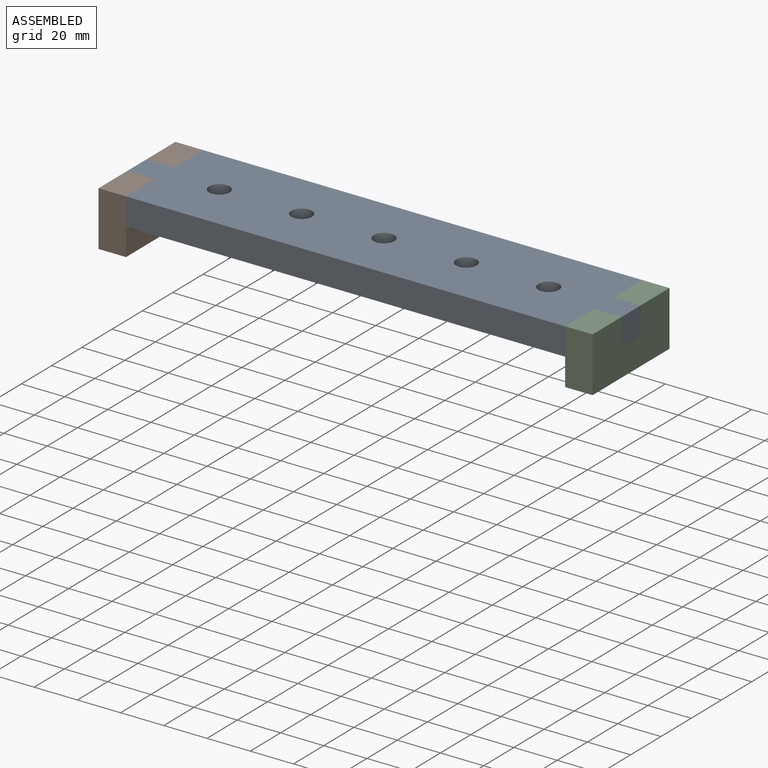
[diagram: assembled view]
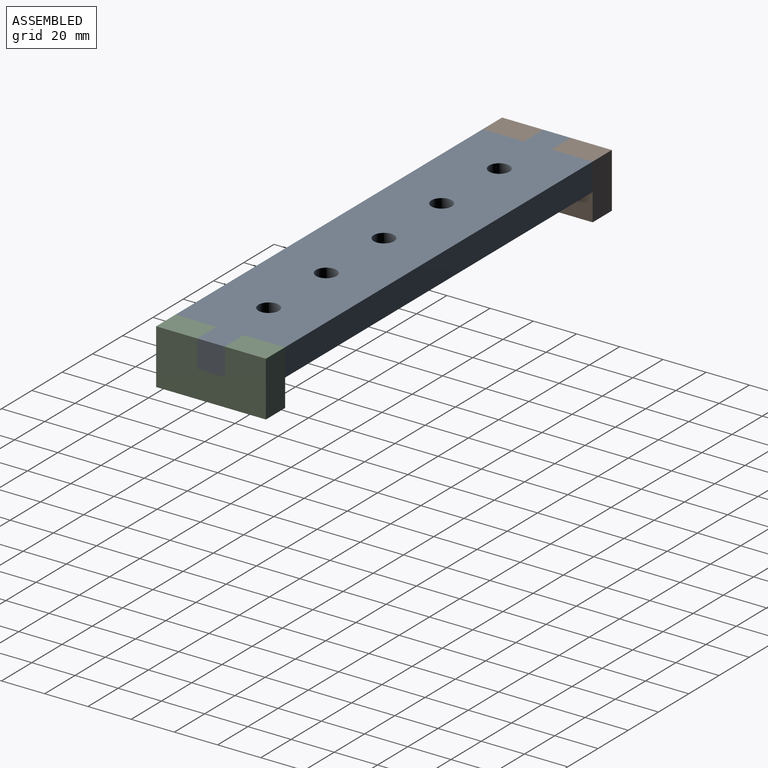
[diagram: assembled view, second angle]
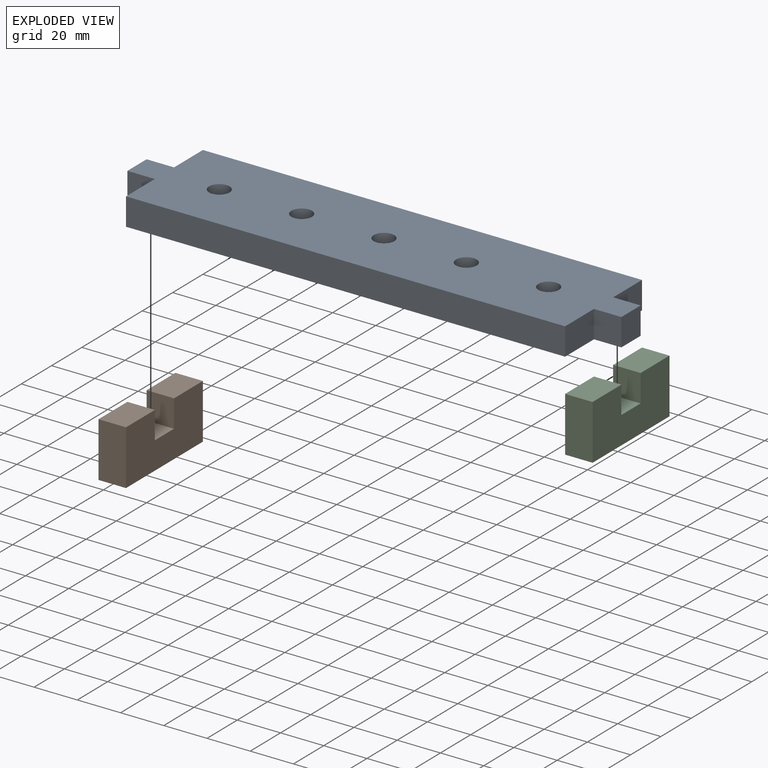
[diagram: exploded view]
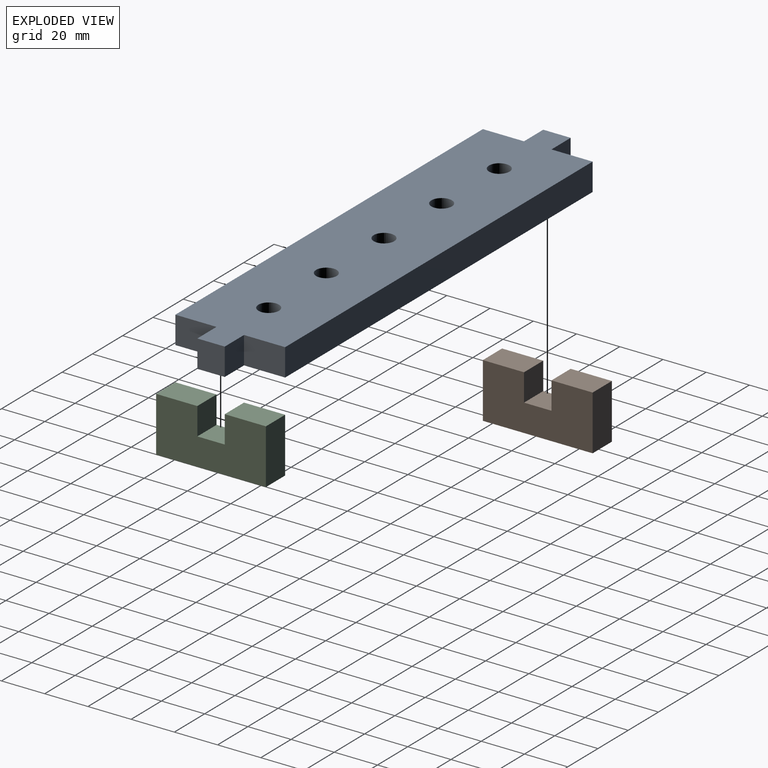
[diagram: exploded view, second angle]
ASSEMBLY  parts=3 mates=2
PART A: 19 faces, bbox 228.6x50.8x12.7 mm
  f0: plane 203.2x12.7mm, normal (0,1,0), area 2580.6mm2, adj f1,f16,f17,f18
  f1: plane 19.05x12.7mm, normal (-1,0,0), area 241.9mm2, adj f0,f2,f17,f18
  f2: plane 12.7x12.7mm, normal (0,1,0), area 161.3mm2, adj f1,f3,f17,f18
  f3: plane 12.7x12.7mm, normal (-1,0,0), area 161.3mm2, adj f2,f4,f17,f18
  f4: plane 12.7x12.7mm, normal (0,-1,0), area 161.3mm2, adj f3,f5,f17,f18
  f5: plane 19.05x12.7mm, normal (-1,0,0), area 241.9mm2, adj f4,f6,f17,f18
  f6: plane 203.2x12.7mm, normal (0,-1,0), area 2580.6mm2, adj f5,f7,f17,f18
  f7: plane 19.05x12.7mm, normal (1,0,0), area 241.9mm2, adj f6,f8,f17,f18
  f8: plane 12.7x12.7mm, normal (0,-1,0), area 161.3mm2, adj f7,f9,f17,f18
  f9: plane 12.7x12.7mm, normal (1,0,0), area 161.3mm2, adj f8,f10,f17,f18
  f10: plane 12.7x12.7mm, normal (0,1,0), area 161.3mm2, adj f9,f16,f17,f18
  f11: cylinder r=4.76mm len=12.7mm, axis (0,0,-1), area 380mm2, adj f17,f18
  f12: cylinder r=4.76mm len=12.7mm, axis (0,0,-1), area 380mm2, adj f17,f18
  f13: cylinder r=4.76mm len=12.7mm, axis (0,0,-1), area 380mm2, adj f17,f18
  f14: cylinder r=4.76mm len=12.7mm, axis (0,0,-1), area 380mm2, adj f17,f18
  f15: cylinder r=4.76mm len=12.7mm, axis (0,0,-1), area 380mm2, adj f17,f18
  f16: plane 19.05x12.7mm, normal (1,0,0), area 241.9mm2, adj f0,f10,f17,f18
  f17: plane 228.6x50.8mm, normal (0,0,1), area 10288.9mm2, adj f0,f1,f2,f3,f4,f5,f6,f7
  f18: plane 228.6x50.8mm, normal (0,0,-1), area 10288.9mm2, adj f0,f1,f2,f3,f4,f5,f6,f7
PART B: 10 faces, bbox 12.7x50.8x25.4 mm
  f0: plane 19.05x12.7mm, normal (0,0,1), area 241.9mm2, adj f1,f7,f8,f9
  f1: plane 25.4x12.7mm, normal (0,-1,0), area 322.6mm2, adj f0,f2,f8,f9
  f2: plane 50.8x12.7mm, normal (0,0,-1), area 645.2mm2, adj f1,f3,f8,f9
  f3: plane 25.4x12.7mm, normal (0,1,0), area 322.6mm2, adj f2,f4,f8,f9
  f4: plane 19.05x12.7mm, normal (0,0,1), area 241.9mm2, adj f3,f5,f8,f9
  f5: plane 12.7x12.7mm, normal (0,-1,0), area 161.3mm2, adj f4,f6,f8,f9
  f6: plane 12.7x12.7mm, normal (0,0,1), area 161.3mm2, adj f5,f7,f8,f9
  f7: plane 12.7x12.7mm, normal (0,1,0), area 161.3mm2, adj f0,f6,f8,f9
  f8: plane 50.8x25.4mm, normal (1,0,0), area 1129mm2, adj f0,f1,f2,f3,f4,f5,f6,f7
  f9: plane 50.8x25.4mm, normal (-1,0,0), area 1129mm2, adj f0,f1,f2,f3,f4,f5,f6,f7
PART C: same geometry as B
PLACE A t=(-47.93,5.43,10.38)mm
PLACE B t=(-162.23,-0.92,12.27)mm
PLACE C t=(53.67,-0.92,12.27)mm
MATE fastened B.f6 <-> A.f18  axis (0,0,1) through (-155.88,5.43,10.38)mm
MATE fastened C.f6 <-> A.f18  axis (0,0,1) through (66.37,5.43,10.38)mm
